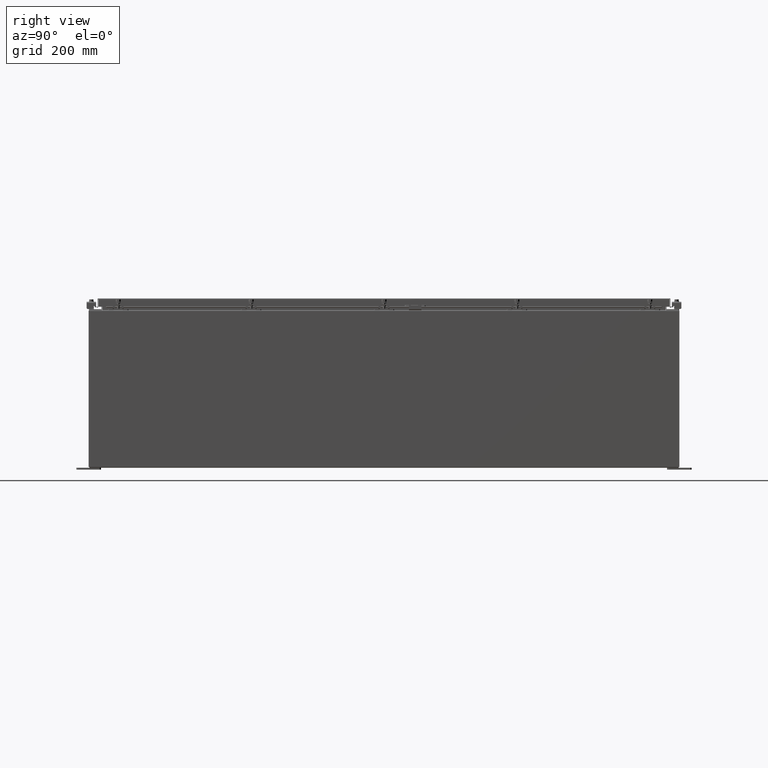
[diagram: clean part render]
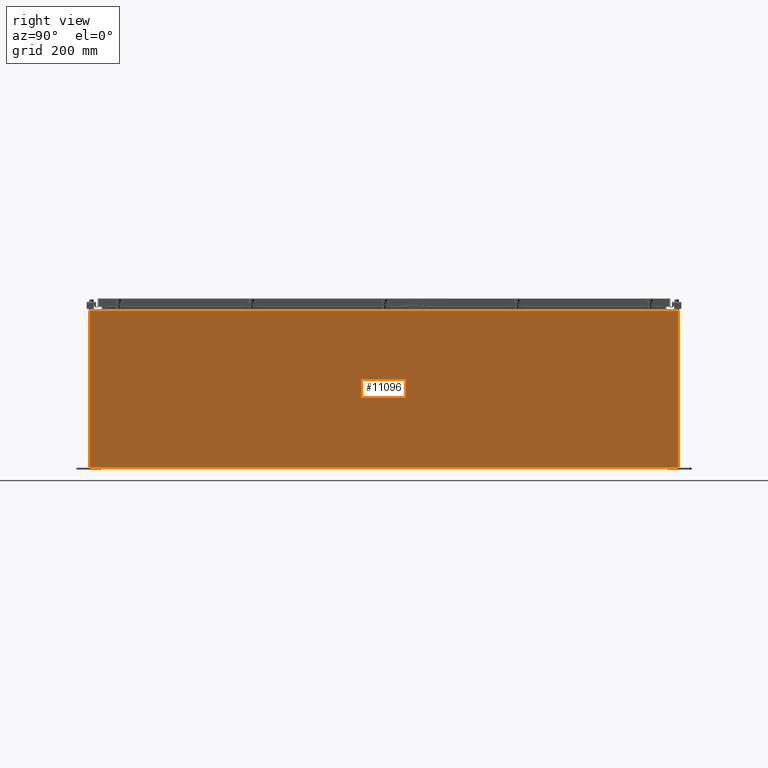
[diagram: same view with one face highlighted and labeled with its STEP entity id]
A machine part, right view. The second image highlights one B-rep face of the part: STEP entity #11096.
In plain terms, the highlighted planar face has unit normal (-1, 0, 0).
Its self-contained STEP definition (entity closure, byte-faithful):
#269 = CARTESIAN_POINT ( 'NONE',  ( 17.99999999999999600, -29.92530000000001100, -6.201571169367082000E-014 ) ) ;
#2435 = ORIENTED_EDGE ( 'NONE', *, *, #10655, .T. ) ;
#2679 = LINE ( 'NONE', #269, #39947 ) ;
#2820 = CARTESIAN_POINT ( 'NONE',  ( 18.00000000000005000, 29.92529999999999300, 15.83760000000000200 ) ) ;
#3574 = VERTEX_POINT ( 'NONE', #6070 ) ;
#5175 = DIRECTION ( 'NONE',  ( -3.430827668758847500E-015, 0.0000000000000000000, -1.000000000000000000 ) ) ;
#6070 = CARTESIAN_POINT ( 'NONE',  ( 18.00000000000005300, -29.92530000000001100, 15.83760000000000200 ) ) ;
#10655 = EDGE_CURVE ( 'NONE', #11111, #32437, #35308, .T. ) ;
#11096 = ADVANCED_FACE ( 'NONE', ( #20788 ), #44273, .F. ) ;
#11111 = VERTEX_POINT ( 'NONE', #24906 ) ;
#13015 = ORIENTED_EDGE ( 'NONE', *, *, #55167, .T. ) ;
#14101 = EDGE_CURVE ( 'NONE', #11111, #45748, #35631, .T. ) ;
#14964 = CARTESIAN_POINT ( 'NONE',  ( 17.99999999999999600, 0.0000000000000000000, -6.201571169367082000E-014 ) ) ;
#17512 = ORIENTED_EDGE ( 'NONE', *, *, #28348, .T. ) ;
#19705 = LINE ( 'NONE', #46883, #32635 ) ;
#20003 = DIRECTION ( 'NONE',  ( 3.430827668758846700E-015, 0.0000000000000000000, 1.000000000000000000 ) ) ;
#20788 = FACE_OUTER_BOUND ( 'NONE', #60321, .T. ) ;
#22379 = VECTOR ( 'NONE', #61889, 39.37007874015748100 ) ;
#24906 = CARTESIAN_POINT ( 'NONE',  ( 17.99999999999999600, 29.92529999999999300, 0.01299999999999984700 ) ) ;
#28348 = EDGE_CURVE ( 'NONE', #32437, #3574, #19705, .T. ) ;
#32437 = VERTEX_POINT ( 'NONE', #2820 ) ;
#32635 = VECTOR ( 'NONE', #51598, 39.37007874015748100 ) ;
#35308 = LINE ( 'NONE', #37413, #22379 ) ;
#35631 = LINE ( 'NONE', #50311, #60006 ) ;
#37413 = CARTESIAN_POINT ( 'NONE',  ( 17.99999999999999600, 29.92529999999998900, -6.201571169367082000E-014 ) ) ;
#39947 = VECTOR ( 'NONE', #5175, 39.37007874015748100 ) ;
#44273 = PLANE ( 'NONE',  #62075 ) ;
#45748 = VERTEX_POINT ( 'NONE', #53382 ) ;
#46883 = CARTESIAN_POINT ( 'NONE',  ( 18.00000000000005000, 29.92529999999999300, 15.83760000000000200 ) ) ;
#49241 = DIRECTION ( 'NONE',  ( -1.000000000000000000, 0.0000000000000000000, 3.430827668758846700E-015 ) ) ;
#50311 = CARTESIAN_POINT ( 'NONE',  ( 17.99999999999999600, -29.92530000000001100, 0.01299999999999984700 ) ) ;
#51598 = DIRECTION ( 'NONE',  ( -0.0000000000000000000, -1.000000000000000000, -0.0000000000000000000 ) ) ;
#53007 = ORIENTED_EDGE ( 'NONE', *, *, #14101, .F. ) ;
#53382 = CARTESIAN_POINT ( 'NONE',  ( 17.99999999999999600, -29.92530000000001100, 0.01299999999999984800 ) ) ;
#55156 = DIRECTION ( 'NONE',  ( -0.0000000000000000000, -1.000000000000000000, -0.0000000000000000000 ) ) ;
#55167 = EDGE_CURVE ( 'NONE', #3574, #45748, #2679, .T. ) ;
#60006 = VECTOR ( 'NONE', #55156, 39.37007874015748100 ) ;
#60321 = EDGE_LOOP ( 'NONE', ( #17512, #13015, #53007, #2435 ) ) ;
#61889 = DIRECTION ( 'NONE',  ( 3.430827668758847500E-015, 0.0000000000000000000, 1.000000000000000000 ) ) ;
#62075 = AXIS2_PLACEMENT_3D ( 'NONE', #14964, #49241, #20003 ) ;